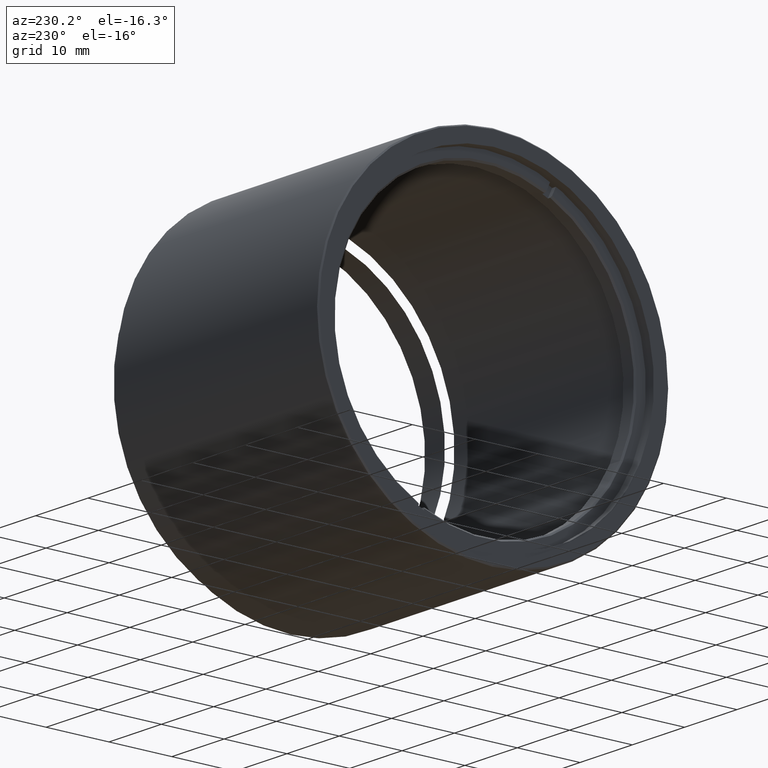
[diagram: clean part render]
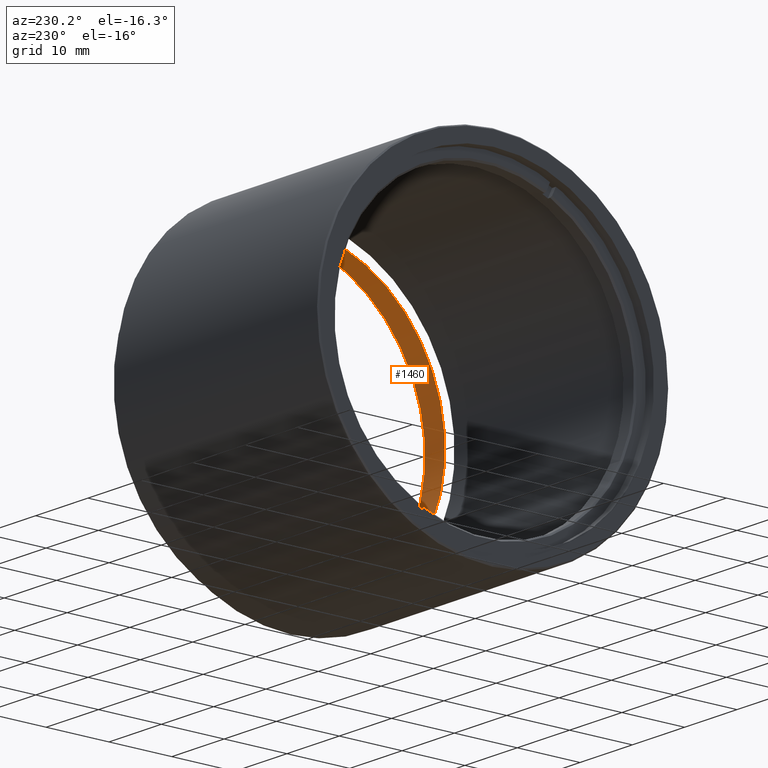
[diagram: same view with one face highlighted and labeled with its STEP entity id]
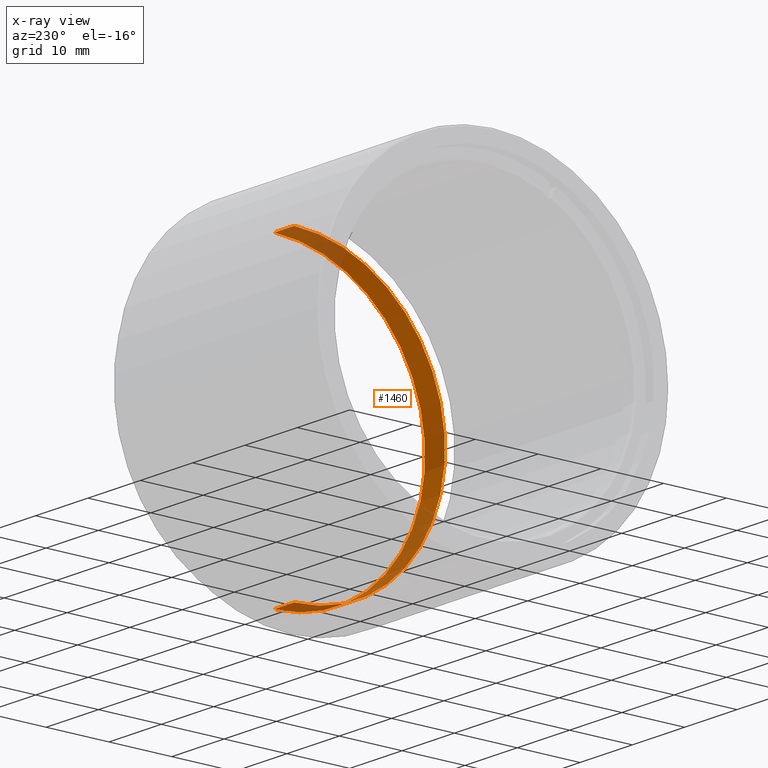
[diagram: x-ray of the same camera — body ghosted, the highlighted face saturated]
A machine part, auxiliary view. The second image highlights one B-rep face of the part: STEP entity #1460.
The next image is the same camera in x-ray: the body ghosted, the highlighted face saturated — about 32% of this face is hidden behind the body in this view.
In plain terms, the highlighted cylindrical surface (partial cylindrical patch) has radius 24 mm, axis along (1, -0, -0).
Its self-contained STEP definition (entity closure, byte-faithful):
#86 = CYLINDRICAL_SURFACE ( 'NONE', #971, 24.00000000000000355 ) ;
#92 = CARTESIAN_POINT ( 'NONE',  ( 2.725999999999982659, -20.10857142857141611, 24.00000000000000355 ) ) ;
#115 = CARTESIAN_POINT ( 'NONE',  ( -35.37400000000001654, -20.10857142857141966, 0.000000000000000000 ) ) ;
#130 = ORIENTED_EDGE ( 'NONE', *, *, #408, .T. ) ;
#173 = CARTESIAN_POINT ( 'NONE',  ( 2.725999999999982659, -20.10857142857141966, -24.00000000000000355 ) ) ;
#195 = DIRECTION ( 'NONE',  ( 1.000000000000000000, -0.000000000000000000, -0.000000000000000000 ) ) ;
#246 = DIRECTION ( 'NONE',  ( 1.000000000000000000, -0.000000000000000000, -0.000000000000000000 ) ) ;
#349 = VERTEX_POINT ( 'NONE', #1136 ) ;
#393 = VERTEX_POINT ( 'NONE', #427 ) ;
#408 = EDGE_CURVE ( 'NONE', #393, #349, #1149, .T. ) ;
#427 = CARTESIAN_POINT ( 'NONE',  ( 6.525999999999982926, -20.10857142857141611, 24.00000000000000355 ) ) ;
#457 = DIRECTION ( 'NONE',  ( 1.000000000000000000, 0.000000000000000000, 0.000000000000000000 ) ) ;
#464 = LINE ( 'NONE', #1349, #1073 ) ;
#570 = DIRECTION ( 'NONE',  ( 1.000000000000000000, 0.000000000000000000, 0.000000000000000000 ) ) ;
#580 = EDGE_LOOP ( 'NONE', ( #793, #1090, #130, #1044 ) ) ;
#616 = VERTEX_POINT ( 'NONE', #92 ) ;
#621 = LINE ( 'NONE', #1046, #1124 ) ;
#687 = DIRECTION ( 'NONE',  ( 0.000000000000000000, 0.000000000000000000, -1.000000000000000000 ) ) ;
#704 = AXIS2_PLACEMENT_3D ( 'NONE', #803, #457, #687 ) ;
#793 = ORIENTED_EDGE ( 'NONE', *, *, #1318, .F. ) ;
#803 = CARTESIAN_POINT ( 'NONE',  ( 2.725999999999982659, -20.10857142857141966, 0.000000000000000000 ) ) ;
#971 = AXIS2_PLACEMENT_3D ( 'NONE', #115, #1474, #1468 ) ;
#1044 = ORIENTED_EDGE ( 'NONE', *, *, #1490, .F. ) ;
#1046 = CARTESIAN_POINT ( 'NONE',  ( -35.37400000000001654, -20.10857142857141611, 24.00000000000000355 ) ) ;
#1073 = VECTOR ( 'NONE', #246, 1000.000000000000000 ) ;
#1090 = ORIENTED_EDGE ( 'NONE', *, *, #1326, .T. ) ;
#1124 = VECTOR ( 'NONE', #195, 1000.000000000000000 ) ;
#1136 = CARTESIAN_POINT ( 'NONE',  ( 6.525999999999982926, -20.10857142857141966, -24.00000000000000355 ) ) ;
#1149 = CIRCLE ( 'NONE', #1445, 24.00000000000000355 ) ;
#1263 = VERTEX_POINT ( 'NONE', #173 ) ;
#1266 = DIRECTION ( 'NONE',  ( 0.000000000000000000, 0.000000000000000000, -1.000000000000000000 ) ) ;
#1318 = EDGE_CURVE ( 'NONE', #616, #1263, #1573, .T. ) ;
#1326 = EDGE_CURVE ( 'NONE', #616, #393, #621, .T. ) ;
#1349 = CARTESIAN_POINT ( 'NONE',  ( -35.37400000000001654, -20.10857142857141966, -24.00000000000000355 ) ) ;
#1395 = CARTESIAN_POINT ( 'NONE',  ( 6.525999999999982926, -20.10857142857141966, 0.000000000000000000 ) ) ;
#1445 = AXIS2_PLACEMENT_3D ( 'NONE', #1395, #570, #1266 ) ;
#1460 = ADVANCED_FACE ( 'NONE', ( #1501 ), #86, .F. ) ;
#1468 = DIRECTION ( 'NONE',  ( 0.000000000000000000, 0.000000000000000000, -1.000000000000000000 ) ) ;
#1474 = DIRECTION ( 'NONE',  ( 1.000000000000000000, -0.000000000000000000, -0.000000000000000000 ) ) ;
#1490 = EDGE_CURVE ( 'NONE', #1263, #349, #464, .T. ) ;
#1501 = FACE_OUTER_BOUND ( 'NONE', #580, .T. ) ;
#1573 = CIRCLE ( 'NONE', #704, 24.00000000000000355 ) ;